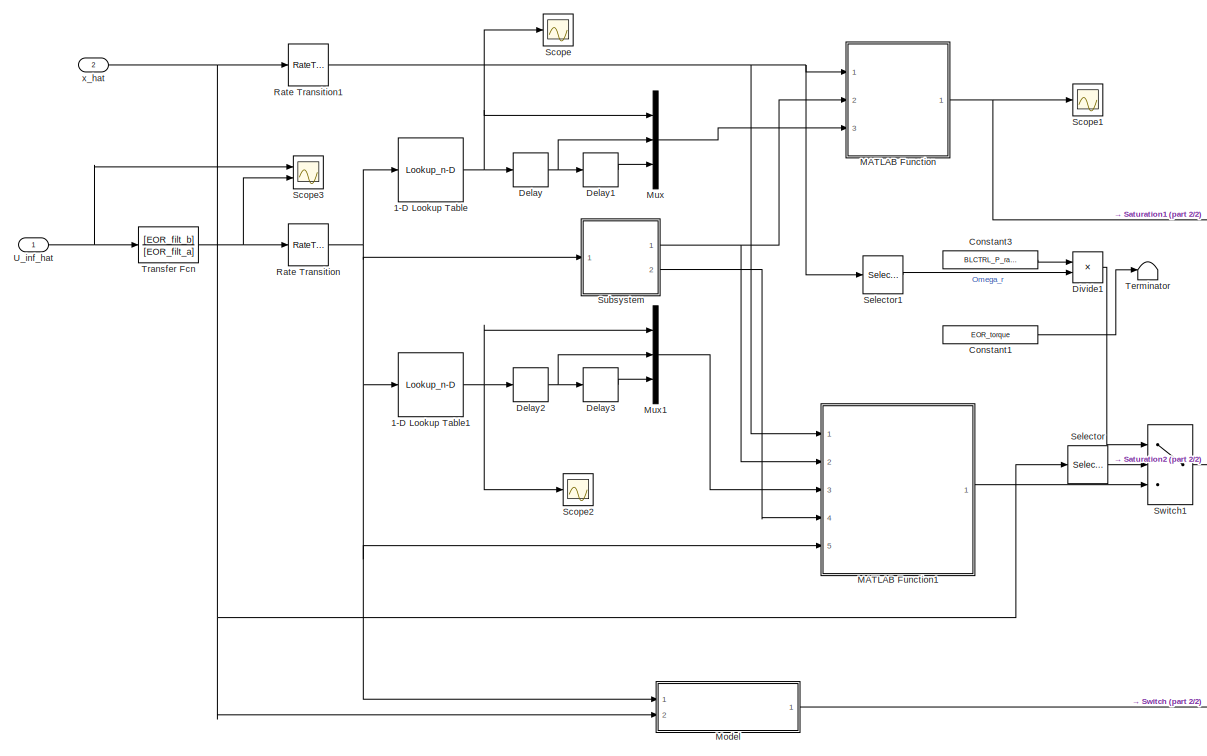
[diagram: root canvas - part 1/2, center side, full height]
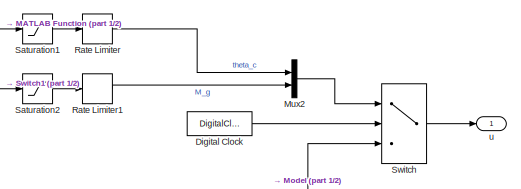
[diagram: root canvas - part 2/2, middle right region]
MODEL slx_a1c7f9efec61
KIND model
CONFIG AbsTol = auto
CONFIG EnableMultiTasking = on
CONFIG FixedStep = DT
CONFIG MaxStep = auto
CONFIG MinStep = auto
CONFIG RelTol = 1e-3
CONFIG SampleTimeConstraint = Unconstrained
CONFIG SolverName = FixedStepAuto
CONFIG StartTime = 0.0
CONFIG StopTime = TMax
BLOCK [Lookup_n-D] 1-D Lookup Table
  BreakpointsForDimension1 = EOR_v_x_breakpoints
  InputPortMap = u0
  InternalRulePriority = Speed
  NumberOfTableDimensions = 1
  Ports = [1, 1]
  RndMeth = Simplest
  Table = EOR_theta_star_lookup
BLOCK [Lookup_n-D] 1-D Lookup Table1
  BreakpointsForDimension1 = EOR_v_x_breakpoints
  InputPortMap = u0
  InternalRulePriority = Speed
  NumberOfTableDimensions = 1
  Ports = [1, 1]
  RndMeth = Simplest
  Table = EOR_Omega_star_lookup
BLOCK [Constant] Constant1
  SampleTime = BLCTRL_T
  Value = EOR_torque
BLOCK [Constant] Constant3
  SampleTime = BLCTRL_T
  Value = BLCTRL_P_rated
BLOCK [Delay] Delay
  DelayLength = 1
  InputPortMap = u0
  Ports = [1, 1]
BLOCK [Delay] Delay1
  DelayLength = 1
  InputPortMap = u0
  Ports = [1, 1]
BLOCK [Delay] Delay2
  DelayLength = 1
  InputPortMap = u0
  Ports = [1, 1]
BLOCK [Delay] Delay3
  DelayLength = 1
  InputPortMap = u0
  Ports = [1, 1]
BLOCK [DigitalClock] Digital Clock
  SampleTime = EOR_T
BLOCK [Product] Divide1
  Inputs = */
  Ports = [2, 1]
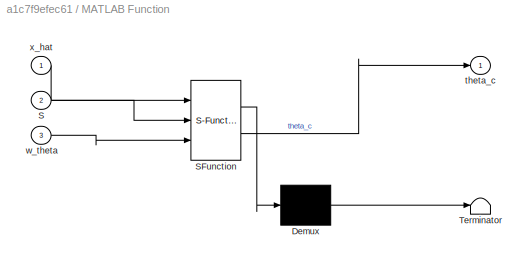
BLOCK [SubSystem] MATLAB Function
  ErrorFcn = Stateflow.Translate.translate
  PermitHierarchicalResolution = ExplicitOnly
  Ports = [3, 1]
  RequestExecContextInheritance = off
  SFBlockType = MATLAB Function
  TreatAsAtomicUnit = on
BLOCK [Demux] MATLAB Function/ Demux 
  Outputs = 1
  Ports = [1, 1]
BLOCK [S-Function] MATLAB Function/ SFunction 
  EnableBusSupport = on
  FunctionName = sf_sfun
  Parameters = EOR_T,EOR_T_avg,EOR_T_solve,EOR_pitch_A,EOR_pitch_B,EOR_pitch_Ce,EOR_pitch_Dew,EOR_pitch_F
  PortCounts = [3 2]
  Ports = [3, 2]
  SFcnIsStateOwnerBlock = off
  SFunctionDeploymentMode = off
  Tag = Stateflow S-Function 1
BLOCK [Terminator] MATLAB Function/ Terminator 
BLOCK [Inport] MATLAB Function/S
  Port = 2
BLOCK [Outport] MATLAB Function/theta_c
BLOCK [Inport] MATLAB Function/w_theta
  Port = 3
BLOCK [Inport] MATLAB Function/x_hat
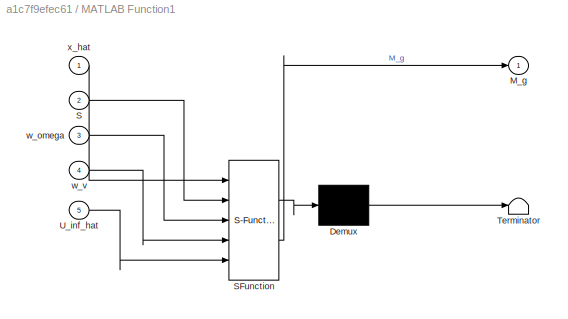
BLOCK [SubSystem] MATLAB Function1
  ErrorFcn = Stateflow.Translate.translate
  PermitHierarchicalResolution = ExplicitOnly
  Ports = [5, 1]
  RequestExecContextInheritance = off
  SFBlockType = MATLAB Function
  TreatAsAtomicUnit = on
BLOCK [Demux] MATLAB Function1/ Demux 
  Outputs = 1
  Ports = [1, 1]
BLOCK [S-Function] MATLAB Function1/ SFunction 
  EnableBusSupport = on
  FunctionName = sf_sfun
  Parameters = CP,CP_lambda,CP_star,CP_theta,C_d,EOR_T,EOR_T_avg,EOR_T_solve,EOR_torque_LQR_R,J_g,J_r,K_d,Omega_rated,R,g,lambda_star,rho,theta_star
  PortCounts = [5 2]
  Ports = [5, 2]
  SFcnIsStateOwnerBlock = off
  SFunctionDeploymentMode = off
  Tag = Stateflow S-Function 3
BLOCK [Terminator] MATLAB Function1/ Terminator 
BLOCK [Outport] MATLAB Function1/M_g
BLOCK [Inport] MATLAB Function1/S
  Port = 2
BLOCK [Inport] MATLAB Function1/U_inf_hat
  Port = 5
BLOCK [Inport] MATLAB Function1/w_omega
  Port = 3
BLOCK [Inport] MATLAB Function1/w_v
  Port = 4
BLOCK [Inport] MATLAB Function1/x_hat
BLOCK [ModelReference] Model
  ModelNameDialog = BLCTRL.slx
  ModelReferenceVersion = 2.4
  Ports = [2, 1]
BLOCK [Mux] Mux
  DisplayOption = bar
  Inputs = 3
  Ports = [3, 1]
BLOCK [Mux] Mux1
  DisplayOption = bar
  Inputs = 3
  Ports = [3, 1]
BLOCK [Mux] Mux2
  DisplayOption = bar
  Inputs = 2
  Ports = [2, 1]
BLOCK [RateLimiter] Rate Limiter
  FallingSlewLimit = -BLCTRL_theta_rate
  RisingSlewLimit = BLCTRL_theta_rate
  SampleTimeMode = inherited
BLOCK [RateLimiter] Rate Limiter1
  FallingSlewLimit = -BLCTRL_torque_rate
  RisingSlewLimit = BLCTRL_torque_rate
  SampleTimeMode = inherited
BLOCK [RateTransition] Rate Transition
  OutPortSampleTime = EOR_T
BLOCK [RateTransition] Rate Transition1
  InitialCondition = zeros(5,1)
  OutPortSampleTime = EOR_T
BLOCK [Saturate] Saturation1
  LowerLimit = BLCTRL_theta_star
  UpperLimit = BLCTRL_theta_max
BLOCK [Saturate] Saturation2
  LowerLimit = -1.1*BLCTRL_M_2
  UpperLimit = 1.1*BLCTRL_M_2
BLOCK [Scope] Scope
  Floating = off
  NumInputPorts = 1
  Ports = [1]
  ScopeSpecificationString = Simulink.scopes.TimeScopeBlockCfg('CurrentConfiguration', extmgr.ConfigurationSet(extmgr.Configuration('Core','General UI',true),extmgr.Configuration('Core','Source UI',true),extmgr.Configuration('Sources','WiredSimulink',true,'DataLoggingVariableName','ScopeData1'),extmgr.Configuration('Visuals','Time Domain',true,'SerializedDisplays',{struct('MinYLimReal','-0.03762','MaxYLimReal','0.33855','YLab...<+1474ch>
BLOCK [Scope] Scope1
  Floating = off
  NumInputPorts = 1
  Ports = [1]
  ScopeSpecificationString = Simulink.scopes.TimeScopeBlockCfg('CurrentConfiguration', extmgr.ConfigurationSet(extmgr.Configuration('Core','General UI',true),extmgr.Configuration('Core','Source UI',true),extmgr.Configuration('Sources','WiredSimulink',true,'DataLoggingVariableName','ScopeData2'),extmgr.Configuration('Visuals','Time Domain',true,'SerializedDisplays',{struct('MinYLimReal','-0.03495','MaxYLimReal','0.31454','YLab...<+1460ch>
BLOCK [Scope] Scope2
  Floating = off
  NumInputPorts = 1
  Ports = [1]
  ScopeSpecificationString = Simulink.scopes.TimeScopeBlockCfg('CurrentConfiguration', extmgr.ConfigurationSet(extmgr.Configuration('Core','General UI',true),extmgr.Configuration('Core','Source UI',true),extmgr.Configuration('Sources','WiredSimulink',true,'DataLoggingVariableName','ScopeData1'),extmgr.Configuration('Visuals','Time Domain',true,'SerializedDisplays',{struct('MinYLimReal','-0.15839','MaxYLimReal','1.4255','YLabe...<+1446ch>
BLOCK [Scope] Scope3
  Floating = off
  NumInputPorts = 2
  Ports = [2]
  ScopeSpecificationString = Simulink.scopes.TimeScopeBlockCfg('CurrentConfiguration', extmgr.ConfigurationSet(extmgr.Configuration('Core','General UI',true),extmgr.Configuration('Core','Source UI',true),extmgr.Configuration('Sources','WiredSimulink',true,'DataLoggingVariableName','ScopeData2'),extmgr.Configuration('Visuals','Time Domain',true,'SerializedDisplays',{struct('MinYLimReal','5.24202','MaxYLimReal','7.45336','YLabe...<+1455ch>
BLOCK [Selector] Selector
  IndexOptions = Index vector (dialog)
  Indices = 4
  InputPortWidth = 5
  OutputSizes = 1
  Ports = [1, 1]
BLOCK [Selector] Selector1
  IndexOptions = Index vector (dialog)
  Indices = [1]
  InputPortWidth = 5
  OutputSizes = 1
  Ports = [1, 1]
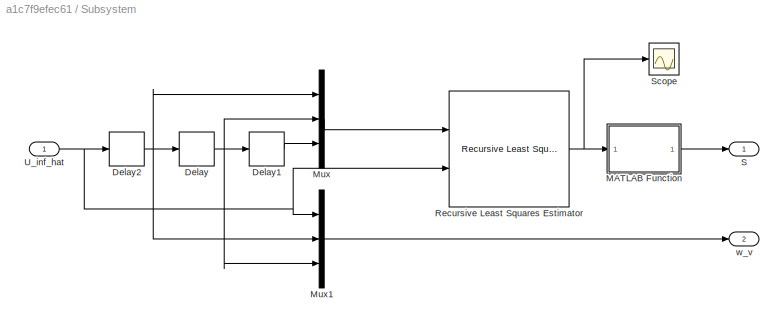
BLOCK [SubSystem] Subsystem
  Ports = [1, 2]
  RequestExecContextInheritance = off
BLOCK [Delay] Subsystem/Delay
  DelayLength = 1
  InputPortMap = u0
  Ports = [1, 1]
BLOCK [Delay] Subsystem/Delay1
  DelayLength = 1
  InputPortMap = u0
  Ports = [1, 1]
BLOCK [Delay] Subsystem/Delay2
  DelayLength = 1
  InputPortMap = u0
  Ports = [1, 1]
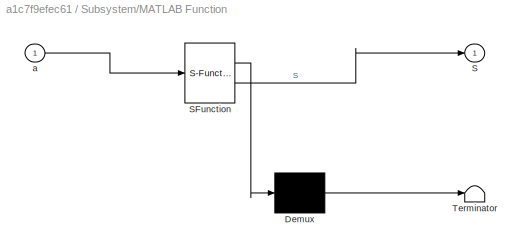
BLOCK [SubSystem] Subsystem/MATLAB Function
  ErrorFcn = Stateflow.Translate.translate
  PermitHierarchicalResolution = ExplicitOnly
  Ports = [1, 1]
  RequestExecContextInheritance = off
  SFBlockType = MATLAB Function
  TreatAsAtomicUnit = on
BLOCK [Demux] Subsystem/MATLAB Function/ Demux 
  Outputs = 1
  Ports = [1, 1]
BLOCK [S-Function] Subsystem/MATLAB Function/ SFunction 
  EnableBusSupport = on
  FunctionName = sf_sfun
  PortCounts = [1 2]
  Ports = [1, 2]
  SFcnIsStateOwnerBlock = off
  SFunctionDeploymentMode = off
  Tag = Stateflow S-Function 2
BLOCK [Terminator] Subsystem/MATLAB Function/ Terminator 
BLOCK [Outport] Subsystem/MATLAB Function/S
BLOCK [Inport] Subsystem/MATLAB Function/a
BLOCK [Mux] Subsystem/Mux
  DisplayOption = bar
  Inputs = 3
  Ports = [3, 1]
BLOCK [Mux] Subsystem/Mux1
  DisplayOption = bar
  Inputs = 3
  Ports = [3, 1]
BLOCK [Reference] Subsystem/Recursive Least Squares Estimator  REF=ctrlSharedLib/Recursive Least Squares Estimator
  Ports = [2, 1]
  SourceBlock = ctrlSharedLib/Recursive Least Squares Estimator
  SourceProductBaseCode = CT,ID
  SourceType = idEstimatorsRLS
BLOCK [Outport] Subsystem/S
BLOCK [Scope] Subsystem/Scope
  Floating = off
  NumInputPorts = 1
  Ports = [1]
  ScopeSpecificationString = Simulink.scopes.TimeScopeBlockCfg('CurrentConfiguration', extmgr.ConfigurationSet(extmgr.Configuration('Core','General UI',true),extmgr.Configuration('Core','Source UI',true),extmgr.Configuration('Sources','WiredSimulink',true),extmgr.Configuration('Visuals','Time Domain',true,'SerializedDisplays',{struct('MinYLimReal','-1.77896','MaxYLimReal','2.57015','YLabelReal','','MinYLimMag','0.00000','MaxY...<+1515ch>
BLOCK [Inport] Subsystem/U_inf_hat
BLOCK [Outport] Subsystem/w_v
  Port = 2
BLOCK [Switch] Switch
  Criteria = u2 > Threshold
  InputSameDT = off
  SaturateOnIntegerOverflow = off
  Threshold = EOR_T_avg
BLOCK [Switch] Switch1
  Criteria = u2 > Threshold
  InputSameDT = off
  SaturateOnIntegerOverflow = off
  Threshold = EOR_pitch_thresh
BLOCK [Terminator] Terminator
BLOCK [TransferFcn] Transfer Fcn
  Denominator = [EOR_filt_a]
  Numerator = [EOR_filt_b]
BLOCK [Inport] U_inf_hat
  PortDimensions = 1
BLOCK [Outport] u
  PortDimensions = [2 1]
BLOCK [Inport] x_hat
  Port = 2
  PortDimensions = [5 1]
NET 1-D Lookup Table1:1 -> Delay2:1, Mux1:1, Scope2:1
NET 1-D Lookup Table:1 -> Delay:1, Mux:1, Scope:1
LINE Constant1:1 -> Terminator:1
LINE Constant3:1 -> Divide1:1
LINE Delay1:1 -> Mux:3
NET Delay2:1 -> Delay3:1, Mux1:2
LINE Delay3:1 -> Mux1:3
NET Delay:1 -> Delay1:1, Mux:2
LINE Digital Clock:1 -> Switch:2
LINE Divide1:1 -> Switch1:1
LINE MATLAB Function1:1 -> Switch1:3
NET MATLAB Function:1 -> Saturation1:1, Scope1:1
LINE Model:1 -> Switch:3
LINE Mux1:1 -> MATLAB Function1:3
LINE Mux2:1 -> Switch:1
LINE Mux:1 -> MATLAB Function:3
LINE Rate Limiter1:1 -> Mux2:2
LINE Rate Limiter:1 -> Mux2:1
NET Rate Transition1:1 -> MATLAB Function1:1, MATLAB Function:1, Selector1:1
NET Rate Transition:1 -> 1-D Lookup Table1:1, 1-D Lookup Table:1, MATLAB Function1:5, Model:1, Subsystem:1
LINE Saturation1:1 -> Rate Limiter:1
LINE Saturation2:1 -> Rate Limiter1:1
LINE Selector1:1 -> Divide1:2
LINE Selector:1 -> Switch1:2
LINE Subsystem/Delay1:1 -> Subsystem/Mux:3
NET Subsystem/Delay2:1 -> Subsystem/Delay:1, Subsystem/Mux1:2, Subsystem/Mux:1
NET Subsystem/Delay:1 -> Subsystem/Delay1:1, Subsystem/Mux1:3, Subsystem/Mux:2
LINE Subsystem/MATLAB Function:1 -> Subsystem/S:1
LINE Subsystem/Mux1:1 -> Subsystem/w_v:1
LINE Subsystem/Mux:1 -> Subsystem/Recursive Least Squares Estimator:1
NET Subsystem/Recursive Least Squares Estimator:1 -> Subsystem/MATLAB Function:1, Subsystem/Scope:1
NET Subsystem/U_inf_hat:1 -> Subsystem/Delay2:1, Subsystem/Mux1:1, Subsystem/Recursive Least Squares Estimator:2
NET Subsystem:1 -> MATLAB Function1:2, MATLAB Function:2
LINE Subsystem:2 -> MATLAB Function1:4
LINE Switch1:1 -> Saturation2:1
LINE Switch:1 -> u:1
NET Transfer Fcn:1 -> Rate Transition:1, Scope3:2
NET U_inf_hat:1 -> Scope3:1, Transfer Fcn:1
NET x_hat:1 -> Model:2, Rate Transition1:1, Selector:1
note: NET lines group one-source signal fan-out (src -> all destinations, sorted); 1:1 wires keep LINE
CHART MATLAB Function states=1 transitions=1
  STATE_LABEL 'eML_blk_kernel()'
  STATE_LABEL 'SCRIPT:\nfunction theta_c = EOR_pitch(x_hat, S, w_theta, EOR_pitch_A, EOR_pitch_B, EOR_pitch_Ce, EOR_pitch_Dew, EOR_pitch_F, EOR_T_avg, EOR_T, EOR_T_solve)\n\n    persistent t;\n    if isempty(t)\n        t = 0;\n    end\n    \n    persistent G;\n\n    if t < EOR_T_avg && isempty(G)\n        theta_c = 0;\n    else\n        if isempty(G) || t > EOR_T_solve\n            \n            Gamma = zeros(1, 3);\n         ...<+341ch>'
CHART Subsystem/MATLAB Function states=1 transitions=1
  STATE_LABEL 'eML_blk_kernel()'
  STATE_LABEL 'SCRIPT:\nfunction S = fcn(a)\n\n    S = [a(1) a(2) a(3); 1 0 0; 0 1 0];\n\nend\n'
CHART MATLAB Function1 states=1 transitions=1
  STATE_LABEL 'eML_blk_kernel()'
  STATE_LABEL 'SCRIPT:\nfunction M_g = EOR_torque(x_hat, S, w_omega, w_v, U_inf_hat, EOR_T_avg, EOR_T, EOR_T_solve, EOR_torque_LQR_R, Omega_rated, R, rho, CP, CP_lambda, CP_theta, C_d, J_r, K_d, g, J_g, CP_star, theta_star, lambda_star)\n\n    persistent t vx0;\n    if isempty(t)\n        t = 0;\n        vx0 = 0;\n    end\n    \n    persistent F G;\n    \n    persistent A B Ew Ce Dew;\n    persistent x_star u_star;\n    \n   ...<+2297ch>'
CHART  states=0 transitions=0
CHART  states=0 transitions=0
CHART  states=0 transitions=0
